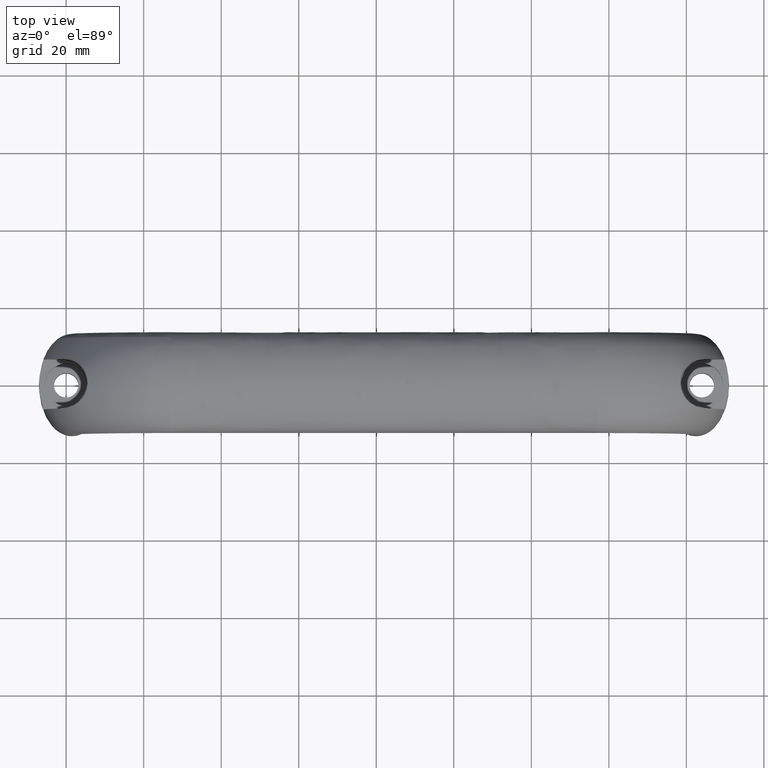
[diagram: clean part render]
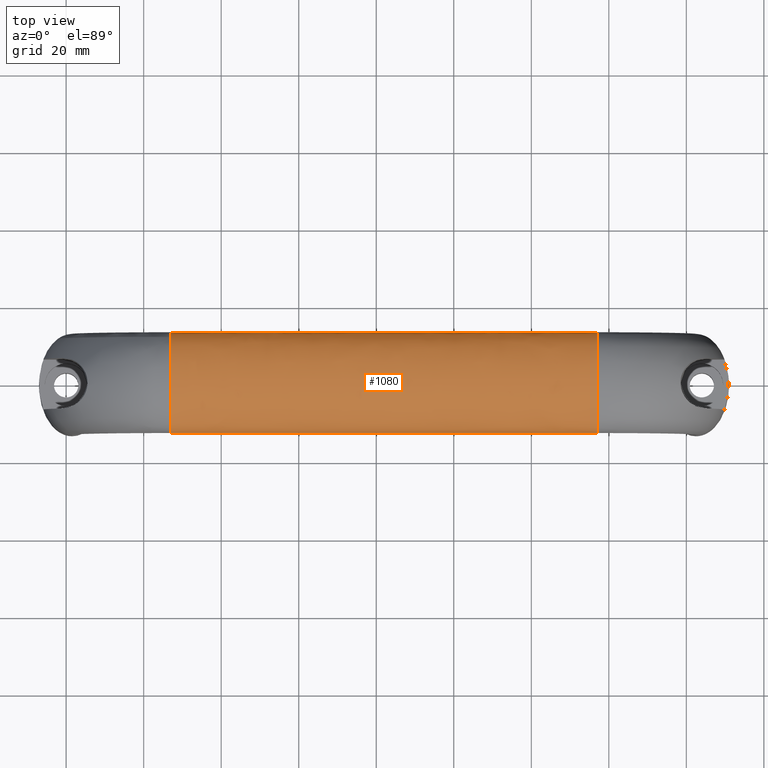
[diagram: same view with one face highlighted and labeled with its STEP entity id]
A machine part, top view. The second image highlights one B-rep face of the part: STEP entity #1080.
In plain terms, the highlighted face is a freeform B-spline surface patch.
Its self-contained STEP definition (entity closure, byte-faithful):
#918=CARTESIAN_POINT('',(27.0,10.975612390839739,43.945753605694257));
#919=CARTESIAN_POINT('',(27.0,11.376898705442461,44.359061775319127));
#920=CARTESIAN_POINT('',(27.0,11.723901138068509,44.794891875354857));
#921=CARTESIAN_POINT('',(27.0,12.661644796688099,46.275142982946001));
#922=CARTESIAN_POINT('',(27.0,13.0,47.387352601853507));
#923=CARTESIAN_POINT('',(27.0,13.0,49.612647398146201));
#924=CARTESIAN_POINT('',(27.0,12.661644796688099,50.724857017053687));
#925=CARTESIAN_POINT('',(27.0,11.359223048605360,52.780761333152498));
#926=CARTESIAN_POINT('',(27.0,10.395668951176340,53.723647119786612));
#927=CARTESIAN_POINT('',(27.0,6.785826563922671,56.083928680683300));
#928=CARTESIAN_POINT('',(27.0,3.403392041388941,57.0));
#929=CARTESIAN_POINT('',(27.0,-3.403392041388945,57.0));
#930=CARTESIAN_POINT('',(27.0,-6.785826563922671,56.083928680683300));
#931=CARTESIAN_POINT('',(27.0,-10.395668951176340,53.723647119786612));
#932=CARTESIAN_POINT('',(27.0,-11.359223048605340,52.780761333152498));
#933=CARTESIAN_POINT('',(27.0,-12.661644796688099,50.724857017053687));
#934=CARTESIAN_POINT('',(27.0,-13.0,49.612647398146201));
#935=CARTESIAN_POINT('',(27.0,-13.0,48.499999999999851));
#936=CARTESIAN_POINT('',(63.666666646508922,10.975612390839739,43.946077662575618));
#937=CARTESIAN_POINT('',(63.666666646072542,11.376898705442461,44.359389344227438));
#938=CARTESIAN_POINT('',(63.666666645617177,11.723901138068509,44.795223046903288));
#939=CARTESIAN_POINT('',(63.666666644087407,12.661644796688099,46.275486063615404));
#940=CARTESIAN_POINT('',(63.666666642971009,13.0,47.387704062439703));
#941=CARTESIAN_POINT('',(63.666666640807797,13.0,49.613014551245200));
#942=CARTESIAN_POINT('',(63.666666639761701,12.661644796688099,50.725231521572702));
#943=CARTESIAN_POINT('',(63.666666637889712,11.359223048605360,52.781148647898412));
#944=CARTESIAN_POINT('',(63.666666637057297,10.395668951176340,53.724039996091200));
#945=CARTESIAN_POINT('',(63.666666635044109,6.785826563922671,56.084334694406202));
#946=CARTESIAN_POINT('',(63.666666634288909,3.403392041388941,57.000410831734598));
#947=CARTESIAN_POINT('',(63.666666634288909,-3.403392041388945,57.000410831734598));
#948=CARTESIAN_POINT('',(63.666666635044109,-6.785826563922671,56.084334694406202));
#949=CARTESIAN_POINT('',(63.666666637057403,-10.395668951176340,53.724039996206500));
#950=CARTESIAN_POINT('',(63.666666637889712,-11.359223048605340,52.781148647898412));
#951=CARTESIAN_POINT('',(63.666666639761701,-12.661644796688099,50.725231521572702));
#952=CARTESIAN_POINT('',(63.666666640807712,-13.0,49.613014551369702));
#953=CARTESIAN_POINT('',(63.666666641889357,-13.0,48.500359306904713));
#954=CARTESIAN_POINT('',(100.333333353491300,10.975612390839739,43.946077662575682));
#955=CARTESIAN_POINT('',(100.333333353927700,11.376898705442461,44.359389344227502));
#956=CARTESIAN_POINT('',(100.333333354383100,11.723901138068509,44.795223046903352));
#957=CARTESIAN_POINT('',(100.333333355913000,12.661644796688099,46.275486063615503));
#958=CARTESIAN_POINT('',(100.333333357029200,13.0,47.387704062439703));
#959=CARTESIAN_POINT('',(100.333333359192390,13.0,49.613014551245300));
#960=CARTESIAN_POINT('',(100.333333360238400,12.661644796688099,50.725231521572702));
#961=CARTESIAN_POINT('',(100.333333362110390,11.359223048605360,52.781148647898497));
#962=CARTESIAN_POINT('',(100.333333362942990,10.395668951176340,53.724039996091200));
#963=CARTESIAN_POINT('',(100.333333364956200,6.785826563922671,56.084334694406202));
#964=CARTESIAN_POINT('',(100.333333365711200,3.403392041388941,57.000410831734598));
#965=CARTESIAN_POINT('',(100.333333365711200,-3.403392041388945,57.000410831734598));
#966=CARTESIAN_POINT('',(100.333333364956200,-6.785826563922671,56.084334694406202));
#967=CARTESIAN_POINT('',(100.333333362942990,-10.395668951176340,53.724039996206599));
#968=CARTESIAN_POINT('',(100.333333362110390,-11.359223048605340,52.781148647898497));
#969=CARTESIAN_POINT('',(100.333333360238400,-12.661644796688099,50.725231521572702));
#970=CARTESIAN_POINT('',(100.333333359192390,-13.0,49.613014551369787));
#971=CARTESIAN_POINT('',(100.333333358110810,-13.0,48.500359306904741));
#972=CARTESIAN_POINT('',(137.0,10.975612390839739,43.945753605694293));
#973=CARTESIAN_POINT('',(137.0,11.376898705442461,44.359061775319162));
#974=CARTESIAN_POINT('',(137.0,11.723901138068509,44.794891875354907));
#975=CARTESIAN_POINT('',(137.0,12.661644796688099,46.275142982946001));
#976=CARTESIAN_POINT('',(137.0,13.0,47.387352601853507));
#977=CARTESIAN_POINT('',(137.0,13.0,49.612647398146287));
#978=CARTESIAN_POINT('',(137.0,12.661644796688099,50.724857017053800));
#979=CARTESIAN_POINT('',(137.0,11.359223048605360,52.780761333152498));
#980=CARTESIAN_POINT('',(137.0,10.395668951176340,53.723647119786698));
#981=CARTESIAN_POINT('',(137.0,6.785826563922671,56.083928680683300));
#982=CARTESIAN_POINT('',(137.0,3.403392041388941,57.0));
#983=CARTESIAN_POINT('',(137.0,-3.403392041388945,57.0));
#984=CARTESIAN_POINT('',(137.0,-6.785826563922671,56.083928680683300));
#985=CARTESIAN_POINT('',(137.0,-10.395668951176340,53.723647119786698));
#986=CARTESIAN_POINT('',(137.0,-11.359223048605340,52.780761333152498));
#987=CARTESIAN_POINT('',(137.0,-12.661644796688099,50.724857017053800));
#988=CARTESIAN_POINT('',(137.0,-13.0,49.612647398146287));
#989=CARTESIAN_POINT('',(137.0,-13.0,48.499999999999908));
#990=B_SPLINE_SURFACE_WITH_KNOTS('',3,3,((#918,#936,#954,#972),(#919,#937,#955,#973),(#920,#938,#956,#974),(#921,#939,#957,#975),(#922,#940,#958,#976),(#923,#941,#959,#977),(#924,#942,#960,#978),(#925,#943,#961,#979),(#926,#944,#962,#980),(#927,#945,#963,#981),(#928,#946,#964,#982),(#929,#947,#965,#983),(#930,#948,#966,#984),(#931,#949,#967,#985),(#932,#950,#968,#986),(#933,#951,#969,#987),(#934,#952,#970,#988),(#935,#953,#971,#989)),.UNSPECIFIED.,.F.,.F.,.U.,(4,2,2,2,2,2,2,2,4),(4,4),(0.0,2.200769255092416,7.202517562120631,12.204265869148850,17.206014176177060,27.209510790233491,37.213007404289918,42.214755711318134,47.216504018346349),(0.0,110.000000032893790),.UNSPECIFIED.);
#991=CARTESIAN_POINT('',(137.0,10.975623890149990,43.945765449547217));
#992=VERTEX_POINT('',#991);
#993=CARTESIAN_POINT('',(137.0,13.0,48.499999999999851));
#994=VERTEX_POINT('',#993);
#995=CARTESIAN_POINT('',(137.0,10.975623890149990,43.945765449547217));
#996=CARTESIAN_POINT('',(137.0,11.376905334614779,44.359070101473328));
#997=CARTESIAN_POINT('',(137.0,11.723903875047570,44.794896195742702));
#998=CARTESIAN_POINT('',(137.0,12.661644796688099,46.275142982946001));
#999=CARTESIAN_POINT('',(137.0,13.0,47.387352601853507));
#1000=CARTESIAN_POINT('',(137.0,13.0,48.499999999999851));
#1001=B_SPLINE_CURVE_WITH_KNOTS('',3,(#995,#996,#997,#998,#999,#1000),.UNSPECIFIED.,.F.,.U.,(4,2,4),(0.410000262681718,0.437500000000000,0.500000000000000),.UNSPECIFIED.);
#1002=EDGE_CURVE('',#992,#994,#1001,.T.);
#1003=ORIENTED_EDGE('',*,*,#1002,.F.);
#1004=CARTESIAN_POINT('',(27.0,10.975623890149990,43.945765449547203));
#1005=VERTEX_POINT('',#1004);
#1006=CARTESIAN_POINT('',(27.0,10.975623890149990,43.945765449547203));
#1007=CARTESIAN_POINT('',(63.666666646508922,10.975623890149990,43.946089506428557));
#1008=CARTESIAN_POINT('',(100.333333353491300,10.975623890149990,43.946089506428613));
#1009=CARTESIAN_POINT('',(137.0,10.975623890149990,43.945765449547217));
#1010=B_SPLINE_CURVE_WITH_KNOTS('',3,(#1006,#1007,#1008,#1009),.UNSPECIFIED.,.F.,.U.,(4,4),(0.267058331775723,0.732941668224278),.UNSPECIFIED.);
#1011=EDGE_CURVE('',#1005,#992,#1010,.T.);
#1012=ORIENTED_EDGE('',*,*,#1011,.F.);
#1013=CARTESIAN_POINT('',(27.0,13.0,48.499999999999851));
#1014=VERTEX_POINT('',#1013);
#1015=CARTESIAN_POINT('',(27.0,10.975623890149990,43.945765449547203));
#1016=CARTESIAN_POINT('',(27.0,11.376905334614770,44.359070101473321));
#1017=CARTESIAN_POINT('',(27.0,11.723903875047570,44.794896195742687));
#1018=CARTESIAN_POINT('',(27.0,12.661644796688099,46.275142982946001));
#1019=CARTESIAN_POINT('',(27.0,13.0,47.387352601853507));
#1020=CARTESIAN_POINT('',(27.0,13.0,48.499999999999851));
#1021=B_SPLINE_CURVE_WITH_KNOTS('',3,(#1015,#1016,#1017,#1018,#1019,#1020),.UNSPECIFIED.,.F.,.U.,(4,2,4),(0.410000262681718,0.437500000000000,0.500000000000000),.UNSPECIFIED.);
#1022=EDGE_CURVE('',#1005,#1014,#1021,.T.);
#1023=ORIENTED_EDGE('',*,*,#1022,.T.);
#1024=CARTESIAN_POINT('',(27.0,11.762630262052349,52.119074295047028));
#1025=VERTEX_POINT('',#1024);
#1026=CARTESIAN_POINT('',(27.0,13.0,48.499999999999851));
#1027=CARTESIAN_POINT('',(27.0,13.0,49.612647398146201));
#1028=CARTESIAN_POINT('',(27.0,12.661644796688099,50.724857017053687));
#1029=CARTESIAN_POINT('',(27.0,11.932288617735150,51.876163434111042));
#1030=CARTESIAN_POINT('',(27.0,11.849645570403720,51.998292737369773));
#1031=CARTESIAN_POINT('',(27.0,11.762630262052349,52.119074295047028));
#1032=B_SPLINE_CURVE_WITH_KNOTS('',3,(#1026,#1027,#1028,#1029,#1030,#1031),.UNSPECIFIED.,.F.,.U.,(4,2,4),(0.500000000000000,0.562500000000000,0.570000000002555),.UNSPECIFIED.);
#1033=EDGE_CURVE('',#1014,#1025,#1032,.T.);
#1034=ORIENTED_EDGE('',*,*,#1033,.T.);
#1035=CARTESIAN_POINT('',(27.0,-13.0,48.499999999999851));
#1036=VERTEX_POINT('',#1035);
#1037=CARTESIAN_POINT('',(27.0,11.762630262052349,52.119074295047028));
#1038=CARTESIAN_POINT('',(27.0,11.124518000685439,53.004805718184997));
#1039=CARTESIAN_POINT('',(27.0,10.251275255637010,53.818058382254627));
#1040=CARTESIAN_POINT('',(27.0,6.785826563922671,56.083928680683300));
#1041=CARTESIAN_POINT('',(27.0,3.403392041388941,57.0));
#1042=CARTESIAN_POINT('',(27.0,-3.403392041388945,57.0));
#1043=CARTESIAN_POINT('',(27.0,-6.785826563922671,56.083928680683300));
#1044=CARTESIAN_POINT('',(27.0,-10.395668951176340,53.723647119786612));
#1045=CARTESIAN_POINT('',(27.0,-11.359223048605340,52.780761333152498));
#1046=CARTESIAN_POINT('',(27.0,-12.661644796688099,50.724857017053687));
#1047=CARTESIAN_POINT('',(27.0,-13.0,49.612647398146201));
#1048=CARTESIAN_POINT('',(27.0,-13.0,48.499999999999851));
#1049=B_SPLINE_CURVE_WITH_KNOTS('',3,(#1037,#1038,#1039,#1040,#1041,#1042,#1043,#1044,#1045,#1046,#1047,#1048),.UNSPECIFIED.,.F.,.U.,(4,2,2,2,2,4),(0.570000000002555,0.625000000000000,0.750000000000000,0.875000000000000,0.937500000000000,1.0),.UNSPECIFIED.);
#1050=EDGE_CURVE('',#1025,#1036,#1049,.T.);
#1051=ORIENTED_EDGE('',*,*,#1050,.T.);
#1052=CARTESIAN_POINT('',(137.0,-13.0,48.499999999999893));
#1053=VERTEX_POINT('',#1052);
#1054=CARTESIAN_POINT('',(27.0,-13.0,48.499999999999851));
#1055=CARTESIAN_POINT('',(63.666666641889357,-13.0,48.500359306904713));
#1056=CARTESIAN_POINT('',(100.333333358110810,-13.0,48.500359306904741));
#1057=CARTESIAN_POINT('',(137.0,-13.0,48.499999999999908));
#1058=B_SPLINE_CURVE_WITH_KNOTS('',3,(#1054,#1055,#1056,#1057),.UNSPECIFIED.,.F.,.U.,(4,4),(0.267058331775723,0.732941668224278),.UNSPECIFIED.);
#1059=EDGE_CURVE('',#1036,#1053,#1058,.T.);
#1060=ORIENTED_EDGE('',*,*,#1059,.T.);
#1061=CARTESIAN_POINT('',(137.0,13.0,48.499999999999851));
#1062=CARTESIAN_POINT('',(137.0,13.0,49.612647398146201));
#1063=CARTESIAN_POINT('',(137.0,12.661644796688099,50.724857017053687));
#1064=CARTESIAN_POINT('',(137.0,11.359223048605360,52.780761333152498));
#1065=CARTESIAN_POINT('',(137.0,10.395668951176340,53.723647119786612));
#1066=CARTESIAN_POINT('',(137.0,6.785826563922671,56.083928680683300));
#1067=CARTESIAN_POINT('',(137.0,3.403392041388941,57.0));
#1068=CARTESIAN_POINT('',(137.0,-3.403392041388945,57.0));
#1069=CARTESIAN_POINT('',(137.0,-6.785826563922671,56.083928680683300));
#1070=CARTESIAN_POINT('',(137.0,-10.395668951176340,53.723647119786612));
#1071=CARTESIAN_POINT('',(137.0,-11.359223048605340,52.780761333152498));
#1072=CARTESIAN_POINT('',(137.0,-12.661644796688099,50.724857017053687));
#1073=CARTESIAN_POINT('',(137.0,-13.0,49.612647398146201));
#1074=CARTESIAN_POINT('',(137.0,-13.0,48.499999999999851));
#1075=B_SPLINE_CURVE_WITH_KNOTS('',3,(#1061,#1062,#1063,#1064,#1065,#1066,#1067,#1068,#1069,#1070,#1071,#1072,#1073,#1074),.UNSPECIFIED.,.F.,.U.,(4,2,2,2,2,2,4),(0.500000000000000,0.562500000000000,0.625000000000000,0.750000000000000,0.875000000000000,0.937500000000000,1.0),.UNSPECIFIED.);
#1076=EDGE_CURVE('',#994,#1053,#1075,.T.);
#1077=ORIENTED_EDGE('',*,*,#1076,.F.);
#1078=EDGE_LOOP('',(#1003,#1012,#1023,#1034,#1051,#1060,#1077));
#1079=FACE_OUTER_BOUND('',#1078,.T.);
#1080=ADVANCED_FACE('',(#1079),#990,.T.);